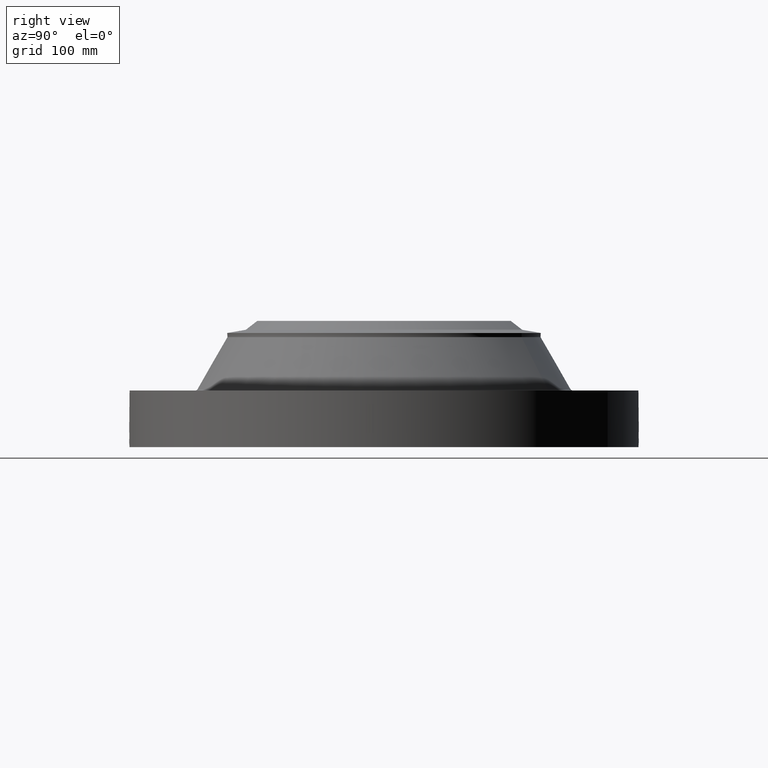
[diagram: clean part render]
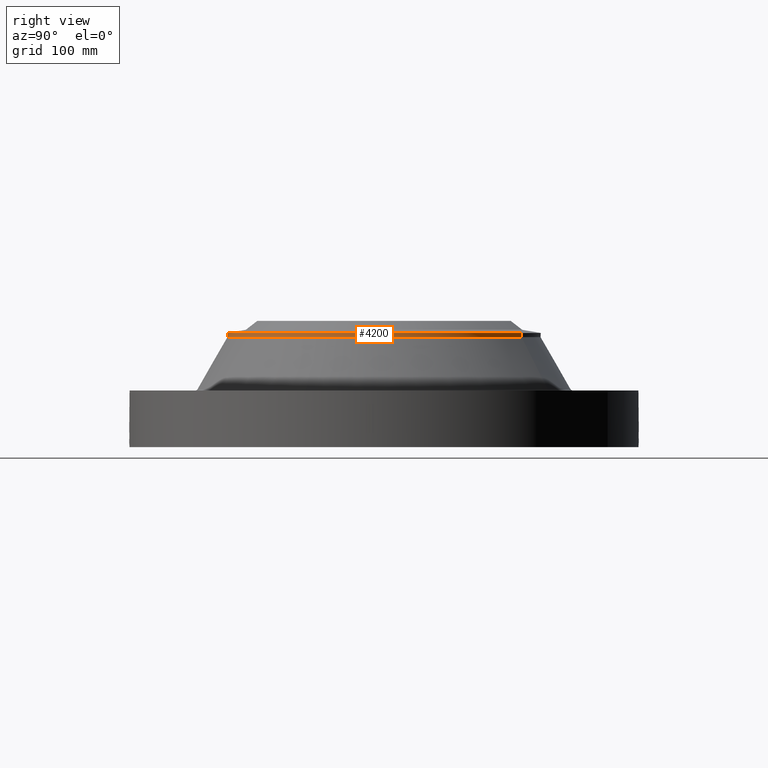
[diagram: same view with one face highlighted and labeled with its STEP entity id]
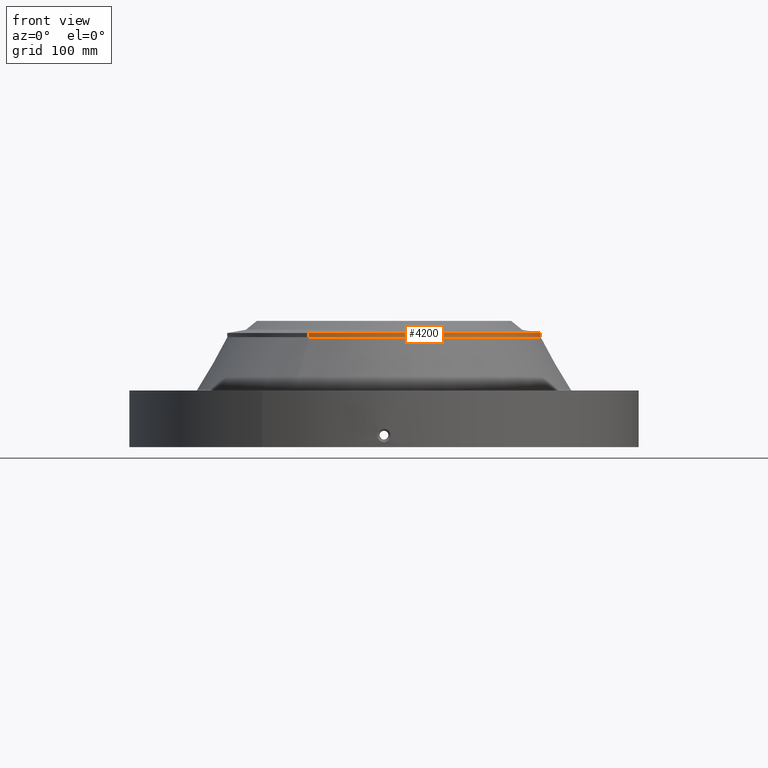
[diagram: same view with one face highlighted and labeled with its STEP entity id]
A machine part, right view. The second image highlights one B-rep face of the part: STEP entity #4200.
A second angle (front view) of the same face is appended — the face is thin or edge-on in the first view.
In plain terms, the highlighted cylindrical surface (partial cylindrical patch) has radius 228.6 mm, axis along (0, 0, -1).
Its self-contained STEP definition (entity closure, byte-faithful):
#3368=AXIS2_PLACEMENT_3D('Circle Axis2P3D',#3366,#3367,$) ;
#4165=AXIS2_PLACEMENT_3D('Cylinder Axis2P3D',#4162,#4163,#4164) ;
#4183=AXIS2_PLACEMENT_3D('Circle Axis2P3D',#4181,#4182,$) ;
#4190=AXIS2_PLACEMENT_3D('Circle Axis2P3D',#4188,#4189,$) ;
#3363=CARTESIAN_POINT('Vertex',(4.31482984746,7.89824305704,6.56807400321)) ;
#3366=CARTESIAN_POINT('Axis2P3D Location',(0.,0.,6.56807400321)) ;
#3370=CARTESIAN_POINT('Vertex',(-4.31482984746,-7.89824305704,6.56807400321)) ;
#4162=CARTESIAN_POINT('Axis2P3D Location',(0.,0.,3.87500000002)) ;
#4167=CARTESIAN_POINT('Line Origine',(-4.31482984746,-7.89824305704,6.68618423943)) ;
#4171=CARTESIAN_POINT('Vertex',(-4.31482984746,-7.89824305704,6.80429447565)) ;
#4174=CARTESIAN_POINT('Line Origine',(4.31482984746,7.89824305704,6.68618423943)) ;
#4178=CARTESIAN_POINT('Vertex',(4.31482984746,7.89824305704,6.80429447565)) ;
#4181=CARTESIAN_POINT('Axis2P3D Location',(0.,0.,6.80429447565)) ;
#4185=CARTESIAN_POINT('Vertex',(4.31482984746,-7.89824305704,6.80429447565)) ;
#4188=CARTESIAN_POINT('Axis2P3D Location',(0.,0.,6.80429447565)) ;
#3367=DIRECTION('Axis2P3D Direction',(0.,0.,-0.0393700787402)) ;
#4163=DIRECTION('Axis2P3D Direction',(0.,0.,-0.0393700787402)) ;
#4164=DIRECTION('Axis2P3D XDirection',(-0.0188750212049,-0.0345504945626,0.)) ;
#4168=DIRECTION('Vector Direction',(0.,0.,-0.0393700787402)) ;
#4175=DIRECTION('Vector Direction',(0.,0.,-0.0393700787402)) ;
#4182=DIRECTION('Axis2P3D Direction',(0.,0.,-0.0393700787402)) ;
#4189=DIRECTION('Axis2P3D Direction',(0.,0.,-0.0393700787402)) ;
#4169=VECTOR('Line Direction',#4168,0.0393700787402) ;
#4176=VECTOR('Line Direction',#4175,0.0393700787402) ;
#4194=ORIENTED_EDGE('',*,*,#4173,.F.) ;
#4195=ORIENTED_EDGE('',*,*,#3372,.F.) ;
#4196=ORIENTED_EDGE('',*,*,#4180,.T.) ;
#4197=ORIENTED_EDGE('',*,*,#4187,.F.) ;
#4198=ORIENTED_EDGE('',*,*,#4192,.T.) ;
#4200=ADVANCED_FACE('PartBody',(#4199),#4166,.T.) ;
#3369=CIRCLE('generated circle',#3368,9.00000000004) ;
#4184=CIRCLE('generated circle',#4183,9.00000000004) ;
#4191=CIRCLE('generated circle',#4190,9.00000000004) ;
#4166=CYLINDRICAL_SURFACE('generated cylinder',#4165,9.00000000004) ;
#3372=EDGE_CURVE('',#3364,#3371,#3369,.T.) ;
#4173=EDGE_CURVE('',#3371,#4172,#4170,.F.) ;
#4180=EDGE_CURVE('',#3364,#4179,#4177,.F.) ;
#4187=EDGE_CURVE('',#4186,#4179,#4184,.F.) ;
#4192=EDGE_CURVE('',#4186,#4172,#4191,.T.) ;
#4193=EDGE_LOOP('',(#4194,#4195,#4196,#4197,#4198)) ;
#4199=FACE_OUTER_BOUND('',#4193,.T.) ;
#4170=LINE('Line',#4167,#4169) ;
#4177=LINE('Line',#4174,#4176) ;
#3364=VERTEX_POINT('',#3363) ;
#3371=VERTEX_POINT('',#3370) ;
#4172=VERTEX_POINT('',#4171) ;
#4179=VERTEX_POINT('',#4178) ;
#4186=VERTEX_POINT('',#4185) ;